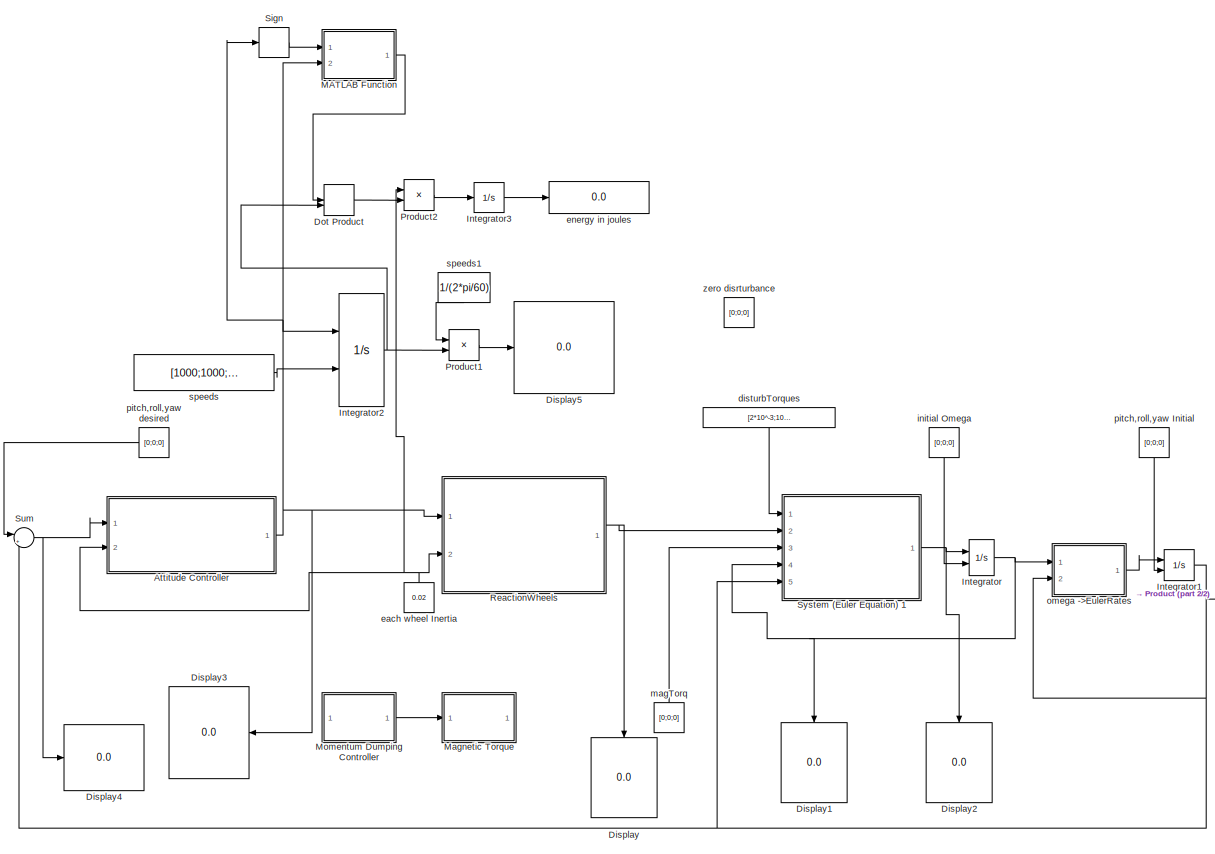
[diagram: root canvas - part 1/2, most of the canvas]
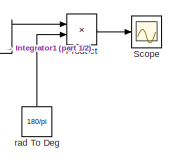
[diagram: root canvas - part 2/2, bottom right region]
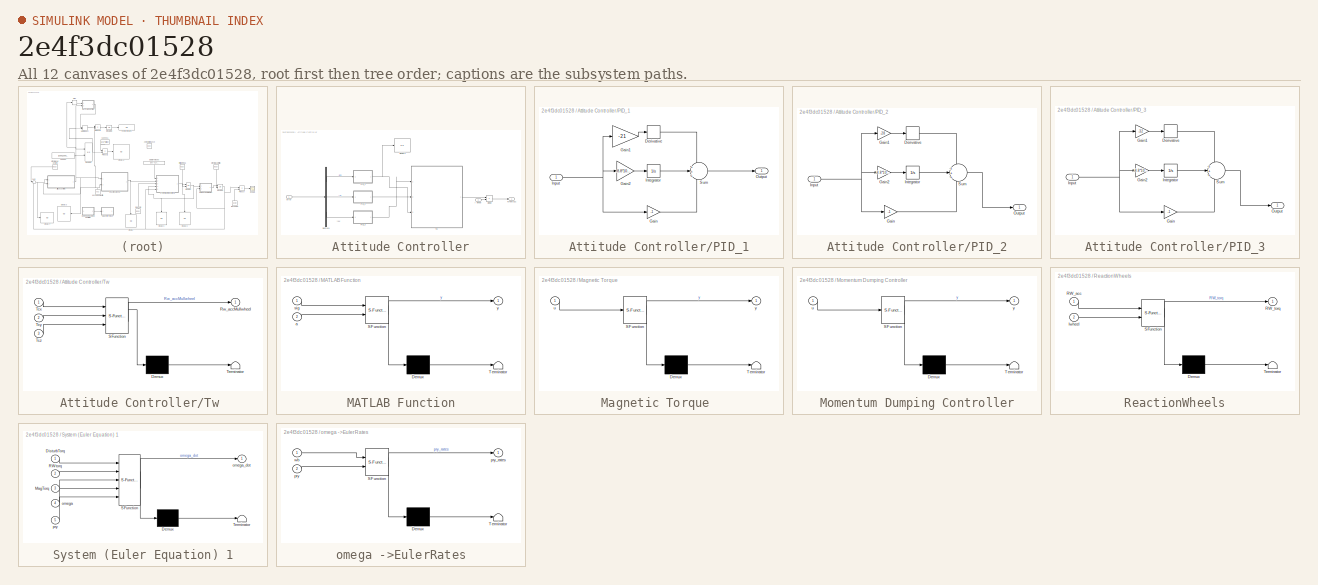
[diagram: thumbnail index - all 12 canvases of the model, root first then tree order]
MODEL slx_2e4f3dc01528
KIND model
CONFIG AbsTol = auto
CONFIG EnableMultiTasking = off
CONFIG FixedStep = auto
CONFIG MaxStep = 0.01
CONFIG MinStep = auto
CONFIG RelTol = 1e-6
CONFIG SampleTimeConstraint = Unconstrained
CONFIG Solver = VariableStepAuto
CONFIG SolverName = VariableStepAuto
CONFIG StartTime = 0.0
CONFIG StopTime = 1000
BLOCK [SubSystem] Attitude Controller
  Ports = [2, 1]
  RequestExecContextInheritance = off
  Variant = off
BLOCK [Demux] Attitude Controller/Demux1
  DisplayOption = bar
  Outputs = 3
  Ports = [1, 3]
BLOCK [Display] Attitude Controller/Display4
  Decimation = 1
  Ports = [1]
BLOCK [Product] Attitude Controller/Divide
  InputSameDT = off
  Inputs = */
  OutDataTypeStr = Inherit: Inherit via internal rule
  Ports = [2, 1]
  RndMeth = Floor
  SaturateOnIntegerOverflow = off
BLOCK [Inport] Attitude Controller/I  wheel
  IconDisplay = Port number
  Port = 2
BLOCK [SubSystem] Attitude Controller/PID_1
  Ports = [1, 1]
  RequestExecContextInheritance = off
  Variant = off
BLOCK [Derivative] Attitude Controller/PID_1/Derivative
  CoefficientInTFapproximation = 0
BLOCK [Gain] Attitude Controller/PID_1/Gain
  Gain = -1
  OutDataTypeStr = Inherit: Inherit via internal rule
  ParamDataTypeStr = Inherit: Inherit via internal rule
  SaturateOnIntegerOverflow = off
BLOCK [Gain] Attitude Controller/PID_1/Gain1
  Gain = -21
  OutDataTypeStr = Inherit: Inherit via internal rule
  ParamDataTypeStr = Inherit: Inherit via internal rule
  SaturateOnIntegerOverflow = off
BLOCK [Gain] Attitude Controller/PID_1/Gain2
  Gain = -8.8*10^-3
  OutDataTypeStr = Inherit: Inherit via internal rule
  ParamDataTypeStr = Inherit: Inherit via internal rule
  SaturateOnIntegerOverflow = off
BLOCK [Inport] Attitude Controller/PID_1/Input
  IconDisplay = Port number
BLOCK [Integrator] Attitude Controller/PID_1/Integrator
  Ports = [1, 1]
BLOCK [Outport] Attitude Controller/PID_1/Output
  IconDisplay = Port number
BLOCK [Sum] Attitude Controller/PID_1/Sum
  IconShape = round
  InputSameDT = off
  Inputs = +++
  OutDataTypeStr = Inherit: Inherit via internal rule
  Ports = [3, 1]
  SaturateOnIntegerOverflow = off
BLOCK [SubSystem] Attitude Controller/PID_2
  Ports = [1, 1]
  RequestExecContextInheritance = off
  Variant = off
BLOCK [Derivative] Attitude Controller/PID_2/Derivative
  CoefficientInTFapproximation = 0
BLOCK [Gain] Attitude Controller/PID_2/Gain
  Gain = -1
  OutDataTypeStr = Inherit: Inherit via internal rule
  ParamDataTypeStr = Inherit: Inherit via internal rule
  SaturateOnIntegerOverflow = off
BLOCK [Gain] Attitude Controller/PID_2/Gain1
  Gain = -28
  OutDataTypeStr = Inherit: Inherit via internal rule
  ParamDataTypeStr = Inherit: Inherit via internal rule
  SaturateOnIntegerOverflow = off
BLOCK [Gain] Attitude Controller/PID_2/Gain2
  Gain = -8.8*10^-3
  OutDataTypeStr = Inherit: Inherit via internal rule
  ParamDataTypeStr = Inherit: Inherit via internal rule
  SaturateOnIntegerOverflow = off
BLOCK [Inport] Attitude Controller/PID_2/Input
  IconDisplay = Port number
BLOCK [Integrator] Attitude Controller/PID_2/Integrator
  Ports = [1, 1]
BLOCK [Outport] Attitude Controller/PID_2/Output
  IconDisplay = Port number
BLOCK [Sum] Attitude Controller/PID_2/Sum
  IconShape = round
  InputSameDT = off
  Inputs = +++
  OutDataTypeStr = Inherit: Inherit via internal rule
  Ports = [3, 1]
  SaturateOnIntegerOverflow = off
BLOCK [SubSystem] Attitude Controller/PID_3
  Ports = [1, 1]
  RequestExecContextInheritance = off
  Variant = off
BLOCK [Derivative] Attitude Controller/PID_3/Derivative
  CoefficientInTFapproximation = 0
BLOCK [Gain] Attitude Controller/PID_3/Gain
  Gain = -1
  OutDataTypeStr = Inherit: Inherit via internal rule
  ParamDataTypeStr = Inherit: Inherit via internal rule
  SaturateOnIntegerOverflow = off
BLOCK [Gain] Attitude Controller/PID_3/Gain1
  Gain = -32
  OutDataTypeStr = Inherit: Inherit via internal rule
  ParamDataTypeStr = Inherit: Inherit via internal rule
  SaturateOnIntegerOverflow = off
BLOCK [Gain] Attitude Controller/PID_3/Gain2
  Gain = -8.8*10^-3
  OutDataTypeStr = Inherit: Inherit via internal rule
  ParamDataTypeStr = Inherit: Inherit via internal rule
  SaturateOnIntegerOverflow = off
BLOCK [Inport] Attitude Controller/PID_3/Input
  IconDisplay = Port number
BLOCK [Integrator] Attitude Controller/PID_3/Integrator
  Ports = [1, 1]
BLOCK [Outport] Attitude Controller/PID_3/Output
  IconDisplay = Port number
BLOCK [Sum] Attitude Controller/PID_3/Sum
  IconShape = round
  InputSameDT = off
  Inputs = +++
  OutDataTypeStr = Inherit: Inherit via internal rule
  Ports = [3, 1]
  SaturateOnIntegerOverflow = off
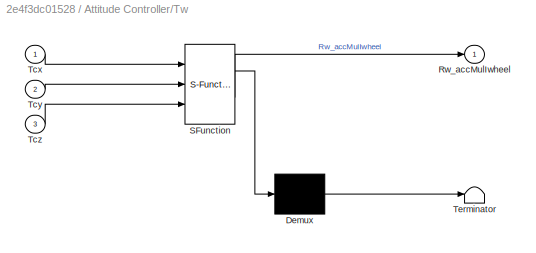
BLOCK [SubSystem] Attitude Controller/Tw 
  ErrorFcn = Stateflow.Translate.translate
  PermitHierarchicalResolution = ExplicitOnly
  Ports = [3, 1]
  RequestExecContextInheritance = off
  SFBlockType = MATLAB Function
  TreatAsAtomicUnit = on
  Variant = off
BLOCK [Demux] Attitude Controller/Tw / Demux 
  Outputs = 1
  Ports = [1, 1]
BLOCK [S-Function] Attitude Controller/Tw / SFunction 
  EnableBusSupport = on
  FunctionName = sf_sfun
  PortCounts = [3 2]
  Ports = [3, 2]
  SFcnIsStateOwnerBlock = off
  SFunctionDeploymentMode = off
  Tag = Stateflow S-Function mainModel_matlab2013b_working_attitude_Tetrahedral 1
BLOCK [Terminator] Attitude Controller/Tw / Terminator 
BLOCK [Outport] Attitude Controller/Tw /Rw_accMulIwheel
  IconDisplay = Port number
BLOCK [Inport] Attitude Controller/Tw /Tcx
  IconDisplay = Port number
BLOCK [Inport] Attitude Controller/Tw /Tcy
  IconDisplay = Port number
  Port = 2
BLOCK [Inport] Attitude Controller/Tw /Tcz
  IconDisplay = Port number
  Port = 3
BLOCK [Outport] Attitude Controller/Wheel acc
  IconDisplay = Port number
BLOCK [Inport] Attitude Controller/error
  IconDisplay = Port number
BLOCK [Display] Display
  Decimation = 1
  Ports = [1]
BLOCK [Display] Display1
  Decimation = 1
  Ports = [1]
BLOCK [Display] Display2
  Decimation = 1
  Ports = [1]
BLOCK [Display] Display3
  Decimation = 1
  Ports = [1]
BLOCK [Display] Display4
  Decimation = 1
  Ports = [1]
BLOCK [Display] Display5
  Decimation = 1
  Ports = [1]
BLOCK [DotProduct] Dot Product
  OutDataTypeStr = Inherit: Inherit via internal rule
BLOCK [Integrator] Integrator
  InitialConditionSource = external
  Ports = [2, 1]
BLOCK [Integrator] Integrator1
  InitialConditionSource = external
  Ports = [2, 1]
BLOCK [Integrator] Integrator2
  InitialConditionSource = external
  LimitOutput = on
  LowerSaturationLimit = 50*2*pi/60
  Ports = [2, 1, 0, 0, 1]
  ShowStatePort = on
  UpperSaturationLimit = 3000*2*pi/60
BLOCK [Integrator] Integrator3
  Ports = [1, 1]
BLOCK [SubSystem] MATLAB Function
  ErrorFcn = Stateflow.Translate.translate
  PermitHierarchicalResolution = ExplicitOnly
  Ports = [2, 1]
  RequestExecContextInheritance = off
  SFBlockType = MATLAB Function
  TreatAsAtomicUnit = on
  Variant = off
BLOCK [Demux] MATLAB Function/ Demux 
  Outputs = 1
  Ports = [1, 1]
BLOCK [S-Function] MATLAB Function/ SFunction 
  EnableBusSupport = on
  FunctionName = sf_sfun
  PortCounts = [2 2]
  Ports = [2, 2]
  SFcnIsStateOwnerBlock = off
  SFunctionDeploymentMode = off
  Tag = Stateflow S-Function mainModel_matlab2013b_working_attitude_Tetrahedral 2
BLOCK [Terminator] MATLAB Function/ Terminator 
BLOCK [Inport] MATLAB Function/a
  IconDisplay = Port number
  Port = 2
BLOCK [Inport] MATLAB Function/sig
  IconDisplay = Port number
BLOCK [Outport] MATLAB Function/y
  IconDisplay = Port number
BLOCK [SubSystem] Magnetic Torque 
  Commented = on
  ErrorFcn = Stateflow.Translate.translate
  PermitHierarchicalResolution = ExplicitOnly
  Ports = [1, 1]
  RequestExecContextInheritance = off
  SFBlockType = MATLAB Function
  TreatAsAtomicUnit = on
  Variant = off
BLOCK [Demux] Magnetic Torque / Demux 
  Outputs = 1
  Ports = [1, 1]
BLOCK [S-Function] Magnetic Torque / SFunction 
  EnableBusSupport = on
  FunctionName = sf_sfun
  PortCounts = [1 2]
  Ports = [1, 2]
  SFcnIsStateOwnerBlock = off
  SFunctionDeploymentMode = off
  Tag = Stateflow S-Function mainModel_matlab2013b_working_attitude_Tetrahedral 6
BLOCK [Terminator] Magnetic Torque / Terminator 
BLOCK [Inport] Magnetic Torque /u
  IconDisplay = Port number
BLOCK [Outport] Magnetic Torque /y
  IconDisplay = Port number
BLOCK [SubSystem] Momentum Dumping Controller
  Commented = on
  ErrorFcn = Stateflow.Translate.translate
  PermitHierarchicalResolution = ExplicitOnly
  Ports = [1, 1]
  RequestExecContextInheritance = off
  SFBlockType = MATLAB Function
  TreatAsAtomicUnit = on
  Variant = off
BLOCK [Demux] Momentum Dumping Controller/ Demux 
  Outputs = 1
  Ports = [1, 1]
BLOCK [S-Function] Momentum Dumping Controller/ SFunction 
  EnableBusSupport = on
  FunctionName = sf_sfun
  PortCounts = [1 2]
  Ports = [1, 2]
  SFcnIsStateOwnerBlock = off
  SFunctionDeploymentMode = off
  Tag = Stateflow S-Function mainModel_matlab2013b_working_attitude_Tetrahedral 9
BLOCK [Terminator] Momentum Dumping Controller/ Terminator 
BLOCK [Inport] Momentum Dumping Controller/u
  IconDisplay = Port number
BLOCK [Outport] Momentum Dumping Controller/y
  IconDisplay = Port number
BLOCK [Product] Product
  InputSameDT = off
  OutDataTypeStr = Inherit: Inherit via internal rule
  Ports = [2, 1]
  RndMeth = Floor
  SaturateOnIntegerOverflow = off
BLOCK [Product] Product1
  InputSameDT = off
  OutDataTypeStr = Inherit: Inherit via internal rule
  Ports = [2, 1]
  RndMeth = Floor
  SaturateOnIntegerOverflow = off
BLOCK [Product] Product2
  InputSameDT = off
  OutDataTypeStr = Inherit: Inherit via internal rule
  Ports = [2, 1]
  RndMeth = Floor
  SaturateOnIntegerOverflow = off
BLOCK [SubSystem] ReactionWheels
  ErrorFcn = Stateflow.Translate.translate
  PermitHierarchicalResolution = ExplicitOnly
  Ports = [2, 1]
  RequestExecContextInheritance = off
  SFBlockType = MATLAB Function
  TreatAsAtomicUnit = on
  Variant = off
BLOCK [Demux] ReactionWheels/ Demux 
  Outputs = 1
  Ports = [1, 1]
BLOCK [S-Function] ReactionWheels/ SFunction 
  EnableBusSupport = on
  FunctionName = sf_sfun
  PortCounts = [2 2]
  Ports = [2, 2]
  SFcnIsStateOwnerBlock = off
  SFunctionDeploymentMode = off
  Tag = Stateflow S-Function mainModel_matlab2013b_working_attitude_Tetrahedral 8
BLOCK [Terminator] ReactionWheels/ Terminator 
BLOCK [Inport] ReactionWheels/Iwheel
  IconDisplay = Port number
  Port = 2
BLOCK [Inport] ReactionWheels/RW_acc
  IconDisplay = Port number
BLOCK [Outport] ReactionWheels/RW_torq
  IconDisplay = Port number
BLOCK [Scope] Scope
  NumInputPorts = 1
  Ports = [1]
  ScopeSpecificationString = Simulink.scopes.TimeScopeBlockCfg('CurrentConfiguration', extmgr.ConfigurationSet(extmgr.Configuration('Core','General UI',true),extmgr.Configuration('Core','Source UI',true),extmgr.Configuration('Sources','WiredSimulink',true,'DataLoggingSaveFormat','StructureWithTime','DataLoggingDecimation','1','DataLoggingDecimateData',true),extmgr.Configuration('Visuals','Time Domain',true,'SerializedDisplays...<+2710ch>
BLOCK [Signum] Sign
BLOCK [Sum] Sum
  IconShape = round
  InputSameDT = off
  Inputs = |+-
  OutDataTypeStr = Inherit: Inherit via internal rule
  Ports = [2, 1]
  SaturateOnIntegerOverflow = off
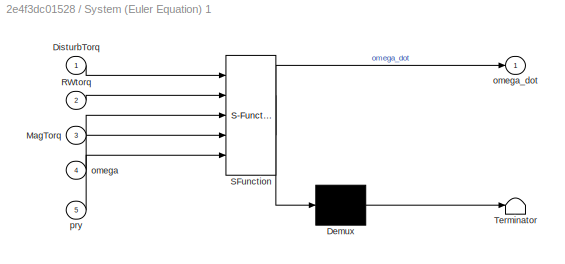
BLOCK [SubSystem] System (Euler Equation) 1
  ErrorFcn = Stateflow.Translate.translate
  PermitHierarchicalResolution = ExplicitOnly
  Ports = [5, 1]
  RequestExecContextInheritance = off
  SFBlockType = MATLAB Function
  TreatAsAtomicUnit = on
  Variant = off
BLOCK [Demux] System (Euler Equation) 1/ Demux 
  Outputs = 1
  Ports = [1, 1]
BLOCK [S-Function] System (Euler Equation) 1/ SFunction 
  EnableBusSupport = on
  FunctionName = sf_sfun
  PortCounts = [5 2]
  Ports = [5, 2]
  SFcnIsStateOwnerBlock = off
  SFunctionDeploymentMode = off
  Tag = Stateflow S-Function mainModel_matlab2013b_working_attitude_Tetrahedral 3
BLOCK [Terminator] System (Euler Equation) 1/ Terminator 
BLOCK [Inport] System (Euler Equation) 1/DisturbTorq
  IconDisplay = Port number
BLOCK [Inport] System (Euler Equation) 1/MagTorq
  IconDisplay = Port number
  Port = 3
BLOCK [Inport] System (Euler Equation) 1/RWtorq
  IconDisplay = Port number
  Port = 2
BLOCK [Inport] System (Euler Equation) 1/omega
  IconDisplay = Port number
  Port = 4
BLOCK [Outport] System (Euler Equation) 1/omega_dot
  IconDisplay = Port number
BLOCK [Inport] System (Euler Equation) 1/pry
  IconDisplay = Port number
  Port = 5
BLOCK [Constant] disturbTorques
  Value = [2*10^-3;10^-4;2*10^-3]
BLOCK [Constant] each wheel Inertia
  Value = 0.02
BLOCK [Display] energy in joules
  Decimation = 1
  Ports = [1]
BLOCK [Constant] initial Omega
  Value = [0;0;0]
BLOCK [Constant] magTorq 
  Value = [0;0;0]
BLOCK [SubSystem] omega ->EulerRates
  ErrorFcn = Stateflow.Translate.translate
  PermitHierarchicalResolution = ExplicitOnly
  Ports = [2, 1]
  RequestExecContextInheritance = off
  SFBlockType = MATLAB Function
  TreatAsAtomicUnit = on
  Variant = off
BLOCK [Demux] omega ->EulerRates/ Demux 
  Outputs = 1
  Ports = [1, 1]
BLOCK [S-Function] omega ->EulerRates/ SFunction 
  EnableBusSupport = on
  FunctionName = sf_sfun
  PortCounts = [2 2]
  Ports = [2, 2]
  SFcnIsStateOwnerBlock = off
  SFunctionDeploymentMode = off
  Tag = Stateflow S-Function mainModel_matlab2013b_working_attitude_Tetrahedral 7
BLOCK [Terminator] omega ->EulerRates/ Terminator 
BLOCK [Inport] omega ->EulerRates/pry
  IconDisplay = Port number
  Port = 2
BLOCK [Outport] omega ->EulerRates/pry_rates
  IconDisplay = Port number
BLOCK [Inport] omega ->EulerRates/wb
  IconDisplay = Port number
BLOCK [Constant] pitch,roll,yaw Initial
  Value = [0;0;0]
BLOCK [Constant] pitch,roll,yaw desired
  Value = [0;0;0]
BLOCK [Constant] rad To Deg
  Value = 180/pi
BLOCK [Constant] speeds
  Value = [1000;1000;1000;1732]*2*pi/60
BLOCK [Constant] speeds1
  Value = 1/(2*pi/60)
BLOCK [Constant] zero disrturbance 
  Value = [0;0;0]
ANNOTATION Attitude Controller: yaw
LINE Attitude Controller/Demux1:1 -> Attitude Controller/PID_1:1
LINE Attitude Controller/Demux1:2 -> Attitude Controller/PID_2:1
LINE Attitude Controller/Demux1:3 -> Attitude Controller/PID_3:1
LINE Attitude Controller/Divide:1 -> Attitude Controller/Wheel acc:1
LINE Attitude Controller/I  wheel:1 -> Attitude Controller/Divide:2
LINE Attitude Controller/PID_1/Derivative:1 -> Attitude Controller/PID_1/Sum:1
LINE Attitude Controller/PID_1/Gain1:1 -> Attitude Controller/PID_1/Derivative:1
LINE Attitude Controller/PID_1/Gain2:1 -> Attitude Controller/PID_1/Integrator:1
LINE Attitude Controller/PID_1/Gain:1 -> Attitude Controller/PID_1/Sum:3
NET Attitude Controller/PID_1/Input:1 -> Attitude Controller/PID_1/Gain1:1, Attitude Controller/PID_1/Gain2:1, Attitude Controller/PID_1/Gain:1
LINE Attitude Controller/PID_1/Integrator:1 -> Attitude Controller/PID_1/Sum:2
LINE Attitude Controller/PID_1/Sum:1 -> Attitude Controller/PID_1/Output:1
NET Attitude Controller/PID_1:1 -> Attitude Controller/Display4:1, Attitude Controller/Tw :3
LINE Attitude Controller/PID_2/Derivative:1 -> Attitude Controller/PID_2/Sum:1
LINE Attitude Controller/PID_2/Gain1:1 -> Attitude Controller/PID_2/Derivative:1
LINE Attitude Controller/PID_2/Gain2:1 -> Attitude Controller/PID_2/Integrator:1
LINE Attitude Controller/PID_2/Gain:1 -> Attitude Controller/PID_2/Sum:3
NET Attitude Controller/PID_2/Input:1 -> Attitude Controller/PID_2/Gain1:1, Attitude Controller/PID_2/Gain2:1, Attitude Controller/PID_2/Gain:1
LINE Attitude Controller/PID_2/Integrator:1 -> Attitude Controller/PID_2/Sum:2
LINE Attitude Controller/PID_2/Sum:1 -> Attitude Controller/PID_2/Output:1
LINE Attitude Controller/PID_2:1 -> Attitude Controller/Tw :2
LINE Attitude Controller/PID_3/Derivative:1 -> Attitude Controller/PID_3/Sum:1
LINE Attitude Controller/PID_3/Gain1:1 -> Attitude Controller/PID_3/Derivative:1
LINE Attitude Controller/PID_3/Gain2:1 -> Attitude Controller/PID_3/Integrator:1
LINE Attitude Controller/PID_3/Gain:1 -> Attitude Controller/PID_3/Sum:3
NET Attitude Controller/PID_3/Input:1 -> Attitude Controller/PID_3/Gain1:1, Attitude Controller/PID_3/Gain2:1, Attitude Controller/PID_3/Gain:1
LINE Attitude Controller/PID_3/Integrator:1 -> Attitude Controller/PID_3/Sum:2
LINE Attitude Controller/PID_3/Sum:1 -> Attitude Controller/PID_3/Output:1
LINE Attitude Controller/PID_3:1 -> Attitude Controller/Tw :1
LINE Attitude Controller/Tw :1 -> Attitude Controller/Divide:1
LINE Attitude Controller/error:1 -> Attitude Controller/Demux1:1
NET Attitude Controller:1 -> Display3:1, Integrator2:1, MATLAB Function:2, ReactionWheels:1, Sign:1
LINE Dot Product:1 -> Product2:2
NET Integrator1:1 -> Product:1, Sum:2, System (Euler Equation) 1:5, omega ->EulerRates:2
NET Integrator2:1 -> Dot Product:2, Product1:2
LINE Integrator3:1 -> energy in joules:1
NET Integrator:1 -> Display1:1, System (Euler Equation) 1:4, omega ->EulerRates:1
LINE MATLAB Function:1 -> Dot Product:1
LINE Momentum Dumping Controller:1 -> Magnetic Torque :1
LINE Product1:1 -> Display5:1
LINE Product2:1 -> Integrator3:1
LINE Product:1 -> Scope:1
NET ReactionWheels:1 -> Display:1, System (Euler Equation) 1:2
LINE Sign:1 -> MATLAB Function:1
NET Sum:1 -> Attitude Controller:1, Display4:1
NET System (Euler Equation) 1:1 -> Display2:1, Integrator:1
LINE disturbTorques:1 -> System (Euler Equation) 1:1
NET each wheel Inertia:1 -> Attitude Controller:2, Product2:1, ReactionWheels:2
LINE initial Omega:1 -> Integrator:2
LINE magTorq :1 -> System (Euler Equation) 1:3
LINE omega ->EulerRates:1 -> Integrator1:1
LINE pitch,roll,yaw Initial:1 -> Integrator1:2
LINE pitch,roll,yaw desired:1 -> Sum:1
LINE rad To Deg:1 -> Product:2
LINE speeds1:1 -> Product1:1
LINE speeds:1 -> Integrator2:2
note: NET lines group one-source signal fan-out (src -> all destinations, sorted); 1:1 wires keep LINE
CHART Attitude Controller/Tw
 states=1 transitions=1
  STATE_LABEL 'eML_blk_kernel()'
  STATE_LABEL 'SCRIPT:\nfunction Rw_accMulIwheel = fcn(Tcx,Tcy,Tcz)\n%Rw_acc=[0;0;0;0]; %no controller for now. This acceleration correspond\n% to the rate of change in speed of each wheel. wheel speeds are always\n% positive buy convention\nTc = [Tcx;Tcy;Tcz];\n\nConv=0.25*[sqrt(3),sqrt(3),sqrt(3)\n           -sqrt(3),-sqrt(3),sqrt(3)\n           -sqrt(3),sqrt(3),-sqrt(3)\n           sqrt(3),-sqrt(3),-sqrt(3)];\n\nRw_accMu...<+23ch>'
CHART MATLAB Function states=1 transitions=1
  STATE_LABEL 'eML_blk_kernel()'
  STATE_LABEL 'SCRIPT:\nfunction y = fcn(sig,a)\ny=sig.*a;\nend\n'
CHART System (Euler Equation)
1 states=1 transitions=1
  STATE_LABEL 'eML_blk_kernel()'
  STATE_LABEL 'SCRIPT:\nfunction omega_dot = fcn( DisturbTorq,RWtorq,MagTorq,omega,pry)\n%[x,y,z] corresponds to yaw roll and pitch axis!!!\n%omega written here is wrt orbit and written in body frame\nMOI=[1800 -50 -15;-50 1600 25;-15 25 1200];%momentOfInertia of Satellite(with everything)\n%Mass=1600;%kg\np=pry(1);\nr=pry(2);\ny=pry(3);\nCx=[    1, 0, 0\n        0, cos(y), sin(y)\n        0, -sin(y), cos(y)];\n\nCy=[    cos...<+378ch>'
CHART Magnetic Torque
 states=1 transitions=1
  STATE_LABEL 'eML_blk_kernel()'
  STATE_LABEL 'SCRIPT:\nfunction y = fcn(u)\n\ny = u;\n'
CHART omega ->EulerRates states=1 transitions=1
  STATE_LABEL 'eML_blk_kernel()'
  STATE_LABEL 'SCRIPT:\nfunction pry_rates  = fcn(wb,pry)\n%[x,y,z] 3-2-1 rotation, where x=yaw,y=roll,z=pitch axis\n% pry-pitch,yaw,roll angles\n\n% Cx=[    1, 0, 0\n%         0, cos(yaw), sin(yaw)\n%         0, -sin(yaw), cos(yaw)    ];\n% \n% Cy=[    cos(roll), 0, -sin(roll);\n%         0, 1, 0;\n%         sin(roll), 0, cos(roll) ];\n% \n% Cz=[    cos(pitch), sin(pitch), 0;\n%         -sin(pitch), cos(pitch), 0;\n%         ...<+267ch>'
CHART ReactionWheels states=1 transitions=1
  STATE_LABEL 'eML_blk_kernel()'
  STATE_LABEL 'SCRIPT:\nfunction RW_torq = fcn(RW_acc,Iwheel)\n%For the tetrahedron one\n%RW_acc means acceleration of 4 individual wheel speeds\n\nRW_torq=Iwheel*[1/sqrt(3),-1/sqrt(3),-1/sqrt(3),1/sqrt(3)\n                1/sqrt(3),-1/sqrt(3),1/sqrt(3),-1/sqrt(3)\n                1/sqrt(3),1/sqrt(3),-1/sqrt(3),-1/sqrt(3)]*RW_acc;\n% if speedLimitSituation~=0\n%     RW_torq=Torq_acceleration_part;       \n% else\n%     RW_...<+64ch>'
CHART Momentum Dumping
Controller states=1 transitions=1
  STATE_LABEL 'eML_blk_kernel()'
  STATE_LABEL 'SCRIPT:\nfunction y = fcn(u)\n\ny = u;\n'
